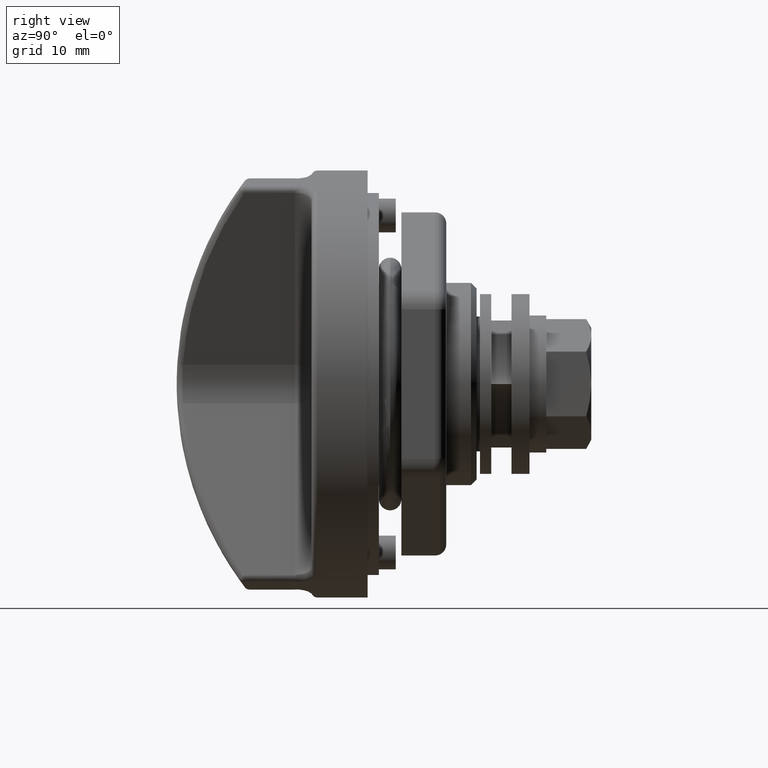
[diagram: clean part render]
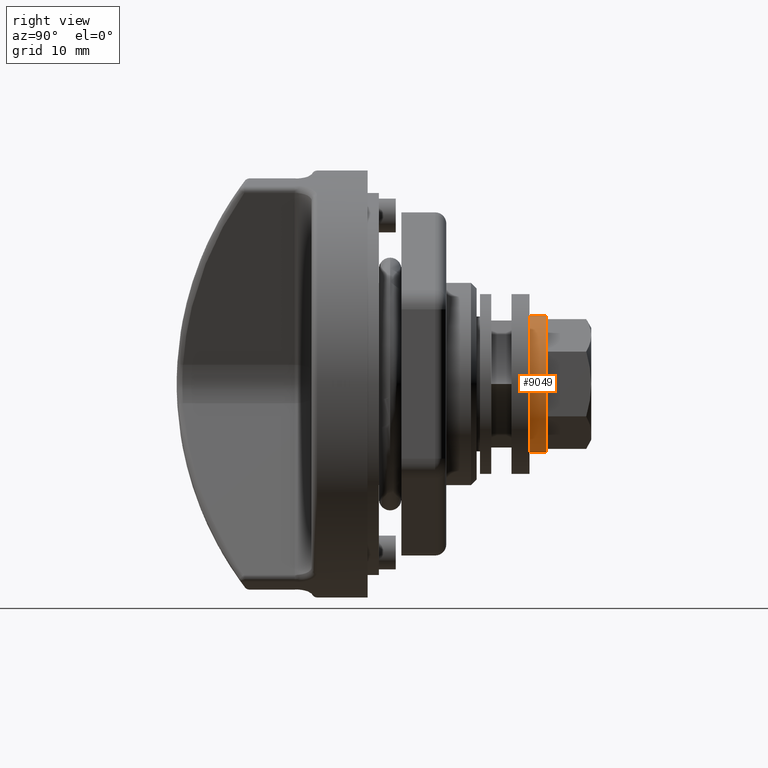
[diagram: same view with one face highlighted and labeled with its STEP entity id]
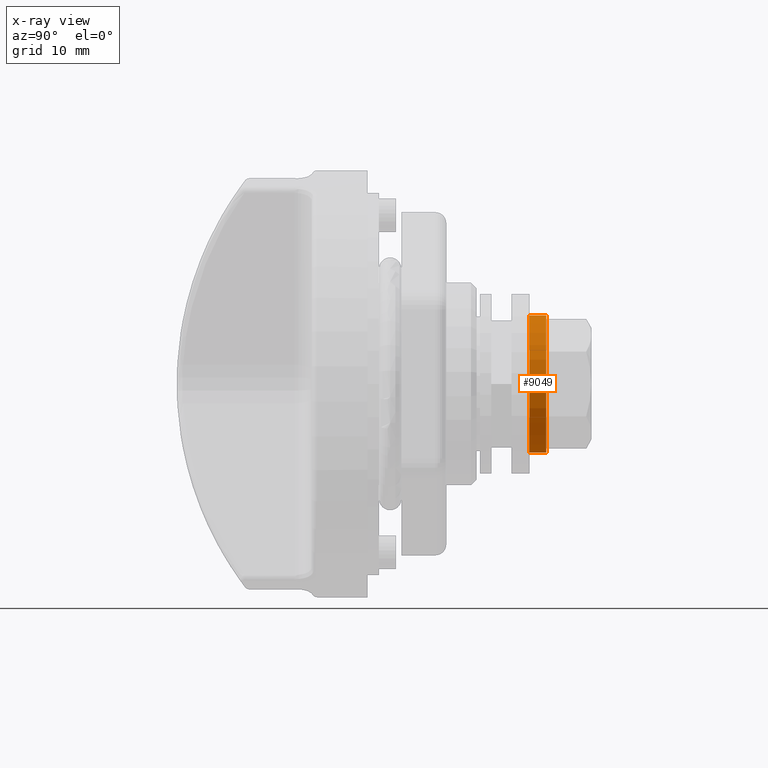
[diagram: x-ray of the same camera — body ghosted, the highlighted face saturated]
A machine part, right view. The second image highlights one B-rep face of the part: STEP entity #9049.
The next image is the same camera in x-ray: the body ghosted, the highlighted face saturated — about 0% of this face is hidden behind the body in this view.
In plain terms, the highlighted cylindrical surface (partial cylindrical patch) has radius 6.1 mm, axis along (0, -1, 0).
Its self-contained STEP definition (entity closure, byte-faithful):
#6516 = DIRECTION ( 'NONE',  ( 0.0000000000000000000, 0.0000000000000000000, 1.000000000000000000 ) ) ;
#6517 = DIRECTION ( 'NONE',  ( -1.000000000000000000, 0.0000000000000000000, 0.0000000000000000000 ) ) ;
#6518 = CARTESIAN_POINT ( 'NONE',  ( 14.40000000000000000, 0.0000000000000000000, 0.0000000000000000000 ) ) ;
#6519 = AXIS2_PLACEMENT_3D ( 'NONE', #6518, #6517, #6516 ) ;
#6520 = CIRCLE ( 'NONE', #6519, 6.100000000000000500 ) ;
#6521 = DIRECTION ( 'NONE',  ( -1.000000000000000000, 0.0000000000000000000, 0.0000000000000000000 ) ) ;
#6522 = VECTOR ( 'NONE', #6521, 1000.000000000000000 ) ;
#6523 = CARTESIAN_POINT ( 'NONE',  ( 0.0000000000000000000, 7.470345474798855300E-016, -6.100000000000000500 ) ) ;
#6524 = LINE ( 'NONE', #6523, #6522 ) ;
#6530 = CARTESIAN_POINT ( 'NONE',  ( 14.40000000000000000, 0.0000000000000000000, 6.100000000000000500 ) ) ;
#6539 = CARTESIAN_POINT ( 'NONE',  ( 15.90000000000000000, 0.0000000000000000000, 6.100000000000000500 ) ) ;
#6540 = CARTESIAN_POINT ( 'NONE',  ( 15.90000000000000000, 7.470345474798855300E-016, -6.100000000000000500 ) ) ;
#6541 = CARTESIAN_POINT ( 'NONE',  ( 14.40000000000000000, 7.470345474798855300E-016, -6.100000000000000500 ) ) ;
#6626 = CIRCLE ( 'NONE', #6695, 6.100000000000000500 ) ;
#6627 = DIRECTION ( 'NONE',  ( 0.0000000000000000000, 0.0000000000000000000, 1.000000000000000000 ) ) ;
#6628 = DIRECTION ( 'NONE',  ( -1.000000000000000000, 0.0000000000000000000, 0.0000000000000000000 ) ) ;
#6629 = CARTESIAN_POINT ( 'NONE',  ( 0.0000000000000000000, 0.0000000000000000000, 0.0000000000000000000 ) ) ;
#6630 = AXIS2_PLACEMENT_3D ( 'NONE', #6629, #6628, #6627 ) ;
#6631 = CYLINDRICAL_SURFACE ( 'NONE', #6630, 6.100000000000000500 ) ;
#6632 = FACE_OUTER_BOUND ( 'NONE', #9050, .T. ) ;
#6692 = DIRECTION ( 'NONE',  ( 0.0000000000000000000, 0.0000000000000000000, 1.000000000000000000 ) ) ;
#6693 = DIRECTION ( 'NONE',  ( -1.000000000000000000, 0.0000000000000000000, 0.0000000000000000000 ) ) ;
#6694 = CARTESIAN_POINT ( 'NONE',  ( 15.90000000000000000, 0.0000000000000000000, 0.0000000000000000000 ) ) ;
#6695 = AXIS2_PLACEMENT_3D ( 'NONE', #6694, #6693, #6692 ) ;
#6723 = DIRECTION ( 'NONE',  ( -1.000000000000000000, 0.0000000000000000000, 0.0000000000000000000 ) ) ;
#6724 = VECTOR ( 'NONE', #6723, 1000.000000000000000 ) ;
#6725 = CARTESIAN_POINT ( 'NONE',  ( 0.0000000000000000000, 0.0000000000000000000, 6.100000000000000500 ) ) ;
#6726 = LINE ( 'NONE', #6725, #6724 ) ;
#8060 = VERTEX_POINT ( 'NONE', #6530 ) ;
#8064 = EDGE_CURVE ( 'NONE', #8990, #8989, #6524, .T. ) ;
#8066 = EDGE_CURVE ( 'NONE', #8989, #8060, #6520, .T. ) ;
#8989 = VERTEX_POINT ( 'NONE', #6541 ) ;
#8990 = VERTEX_POINT ( 'NONE', #6540 ) ;
#8991 = VERTEX_POINT ( 'NONE', #6539 ) ;
#9049 = ADVANCED_FACE ( 'NONE', ( #6632 ), #6631, .T. ) ;
#9050 = EDGE_LOOP ( 'NONE', ( #9051, #9052, #9054, #9055 ) ) ;
#9051 = ORIENTED_EDGE ( 'NONE', *, *, #8064, .F. ) ;
#9052 = ORIENTED_EDGE ( 'NONE', *, *, #9053, .T. ) ;
#9053 = EDGE_CURVE ( 'NONE', #8990, #8991, #6626, .T. ) ;
#9054 = ORIENTED_EDGE ( 'NONE', *, *, #9093, .T. ) ;
#9055 = ORIENTED_EDGE ( 'NONE', *, *, #8066, .F. ) ;
#9093 = EDGE_CURVE ( 'NONE', #8991, #8060, #6726, .T. ) ;